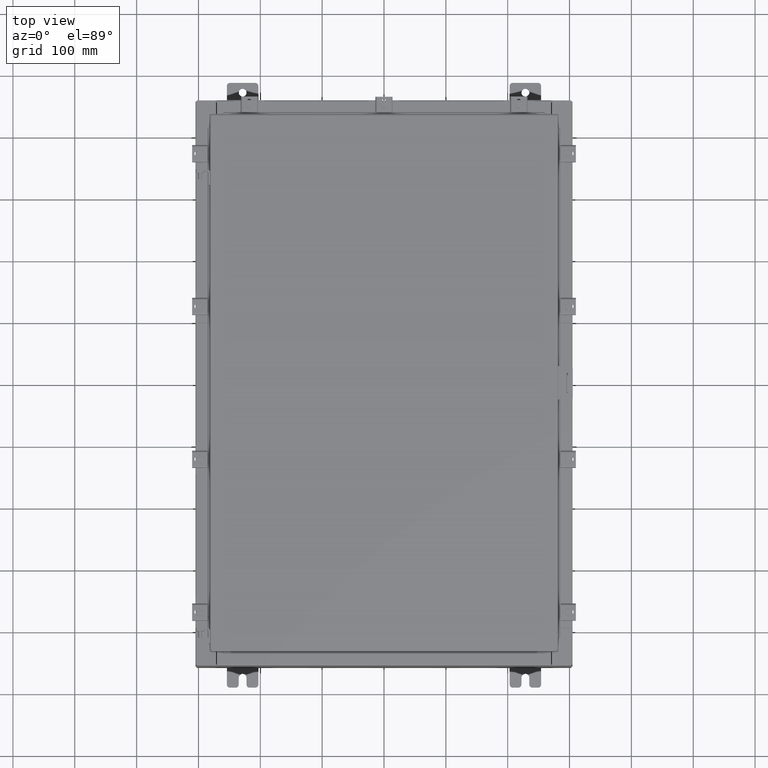
[diagram: clean part render]
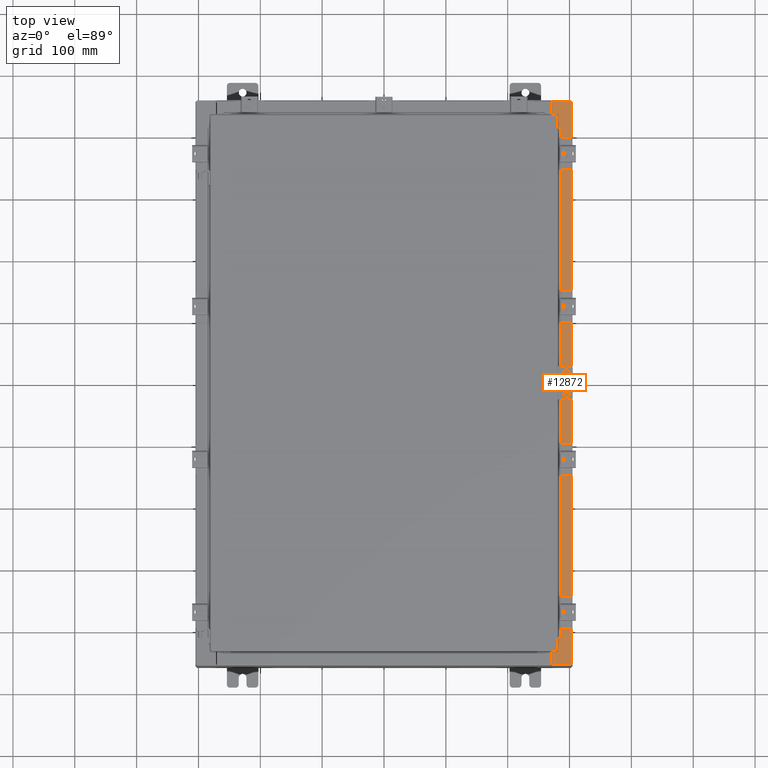
[diagram: same view with one face highlighted and labeled with its STEP entity id]
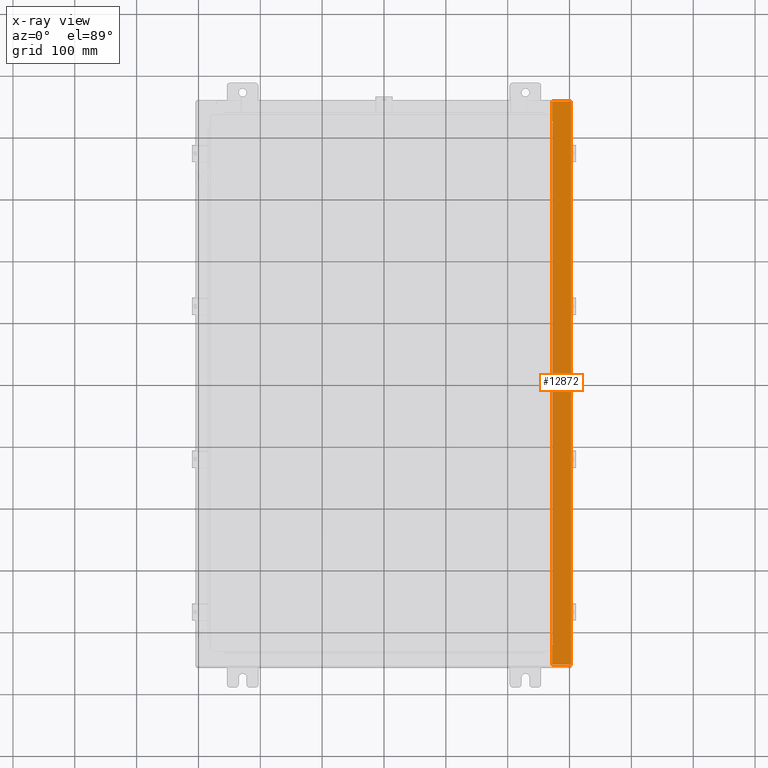
[diagram: x-ray of the same camera — body ghosted, the highlighted face saturated]
A machine part, top view. The second image highlights one B-rep face of the part: STEP entity #12872.
The next image is the same camera in x-ray: the body ghosted, the highlighted face saturated — about 0% of this face is hidden behind the body in this view.
In plain terms, the highlighted planar face has unit normal (-0, 0, -1).
Its self-contained STEP definition (entity closure, byte-faithful):
#133 = DIRECTION ( 'NONE',  ( -0.0000000000000000000, -1.000000000000000000, -0.0000000000000000000 ) ) ;
#177 = VERTEX_POINT ( 'NONE', #4513 ) ;
#478 = CARTESIAN_POINT ( 'NONE',  ( 11.91230000000002900, -17.92530000000000000, 7.925300000000000000 ) ) ;
#501 = LINE ( 'NONE', #18071, #19050 ) ;
#617 = DIRECTION ( 'NONE',  ( -0.0000000000000000000, 1.000000000000000000, -0.0000000000000000000 ) ) ;
#647 = ORIENTED_EDGE ( 'NONE', *, *, #1166, .F. ) ;
#745 = VECTOR ( 'NONE', #4230, 39.37007874015748100 ) ;
#874 = EDGE_CURVE ( 'NONE', #7242, #19210, #10876, .T. ) ;
#920 = ORIENTED_EDGE ( 'NONE', *, *, #2276, .F. ) ;
#1019 = ORIENTED_EDGE ( 'NONE', *, *, #22350, .T. ) ;
#1020 = DIRECTION ( 'NONE',  ( -2.156899250920150100E-031, -1.000000000000000000, 1.346156861557936900E-045 ) ) ;
#1166 = EDGE_CURVE ( 'NONE', #7328, #15864, #9453, .T. ) ;
#1383 = EDGE_CURVE ( 'NONE', #19210, #11576, #15124, .T. ) ;
#1574 = CARTESIAN_POINT ( 'NONE',  ( 11.91230000000002900, 17.92530000000000000, 7.925300000000000000 ) ) ;
#2120 = VECTOR ( 'NONE', #11563, 39.37007874015748100 ) ;
#2276 = EDGE_CURVE ( 'NONE', #11576, #7328, #20979, .T. ) ;
#2464 = VECTOR ( 'NONE', #20028, 39.37007874015748100 ) ;
#2544 = ORIENTED_EDGE ( 'NONE', *, *, #5163, .T. ) ;
#2593 = EDGE_CURVE ( 'NONE', #15864, #13192, #14773, .T. ) ;
#2900 = ORIENTED_EDGE ( 'NONE', *, *, #22109, .T. ) ;
#2977 = CARTESIAN_POINT ( 'NONE',  ( 4.972393517341145600E-014, 17.92529999999999600, 7.925300000000073700 ) ) ;
#3177 = EDGE_CURVE ( 'NONE', #15162, #5106, #4056, .T. ) ;
#3309 = CARTESIAN_POINT ( 'NONE',  ( 1.775970877600283600E-014, -17.92529999999998200, 7.925300000000073700 ) ) ;
#3502 = DIRECTION ( 'NONE',  ( -1.000000000000000000, 0.0000000000000000000, 0.0000000000000000000 ) ) ;
#3794 = CARTESIAN_POINT ( 'NONE',  ( 10.75005000000003000, -16.61242500000000200, 7.925300000000010700 ) ) ;
#4056 = LINE ( 'NONE', #13325, #22647 ) ;
#4192 = CARTESIAN_POINT ( 'NONE',  ( 10.69970000000003000, 16.63110000000000000, 7.925300000000007100 ) ) ;
#4230 = DIRECTION ( 'NONE',  ( -2.156899250920150100E-031, -1.000000000000000000, 1.346156861557936900E-045 ) ) ;
#4513 = CARTESIAN_POINT ( 'NONE',  ( 10.69970000000003000, 17.92530000000000000, 7.925300000000007100 ) ) ;
#4703 = CARTESIAN_POINT ( 'NONE',  ( 4.972393517341145600E-014, 0.0000000000000000000, 7.925300000000073700 ) ) ;
#4997 = CARTESIAN_POINT ( 'NONE',  ( 10.69970000000003000, -16.63110000000000400, 7.925300000000007100 ) ) ;
#5106 = VERTEX_POINT ( 'NONE', #7359 ) ;
#5163 = EDGE_CURVE ( 'NONE', #15162, #15839, #12167, .T. ) ;
#5368 = ORIENTED_EDGE ( 'NONE', *, *, #1383, .F. ) ;
#5570 = DIRECTION ( 'NONE',  ( 1.000000000000000000, 0.0000000000000000000, 0.0000000000000000000 ) ) ;
#5746 = LINE ( 'NONE', #3309, #9392 ) ;
#5892 = ORIENTED_EDGE ( 'NONE', *, *, #11585, .F. ) ;
#6056 = FACE_OUTER_BOUND ( 'NONE', #7735, .T. ) ;
#6096 = ORIENTED_EDGE ( 'NONE', *, *, #14490, .T. ) ;
#6496 = DIRECTION ( 'NONE',  ( -1.000000000000000000, 0.0000000000000000000, 6.241167087353086200E-015 ) ) ;
#6646 = VECTOR ( 'NONE', #3502, 39.37007874015748100 ) ;
#7242 = VERTEX_POINT ( 'NONE', #21766 ) ;
#7328 = VERTEX_POINT ( 'NONE', #9370 ) ;
#7335 = VERTEX_POINT ( 'NONE', #478 ) ;
#7359 = CARTESIAN_POINT ( 'NONE',  ( 10.75005000000003000, -16.63110000000000000, 7.925300000000007100 ) ) ;
#7380 = VECTOR ( 'NONE', #1020, 39.37007874015748100 ) ;
#7467 = CARTESIAN_POINT ( 'NONE',  ( 10.71270000000003000, 16.59375000000000000, 7.925300000000010700 ) ) ;
#7471 = CARTESIAN_POINT ( 'NONE',  ( 10.69970000000003000, -2.307817491507028800E-030, 7.925300000000007100 ) ) ;
#7613 = ORIENTED_EDGE ( 'NONE', *, *, #874, .F. ) ;
#7735 = EDGE_LOOP ( 'NONE', ( #16258, #2544, #2900, #5892, #6096, #1019, #15280, #647, #920, #5368, #7613, #20697 ) ) ;
#7871 = VERTEX_POINT ( 'NONE', #1574 ) ;
#8651 = CARTESIAN_POINT ( 'NONE',  ( 10.75005000000003000, -16.59375000000000000, 7.925300000000010700 ) ) ;
#8823 = VECTOR ( 'NONE', #13864, 39.37007874015748100 ) ;
#9370 = CARTESIAN_POINT ( 'NONE',  ( 10.75005000000003000, 16.59375000000000000, 7.925300000000007100 ) ) ;
#9392 = VECTOR ( 'NONE', #23053, 39.37007874015748100 ) ;
#9453 = CIRCLE ( 'NONE', #17477, 0.01867499999999949400 ) ;
#9732 = VECTOR ( 'NONE', #617, 39.37007874015748100 ) ;
#10876 = LINE ( 'NONE', #8651, #6646 ) ;
#11563 = DIRECTION ( 'NONE',  ( -1.000000000000000000, 0.0000000000000000000, 6.241167087353087800E-015 ) ) ;
#11576 = VERTEX_POINT ( 'NONE', #16241 ) ;
#11585 = EDGE_CURVE ( 'NONE', #7871, #7335, #501, .T. ) ;
#12050 = DIRECTION ( 'NONE',  ( 1.000000000000000000, 0.0000000000000000000, 0.0000000000000000000 ) ) ;
#12167 = LINE ( 'NONE', #7471, #7380 ) ;
#12549 = EDGE_CURVE ( 'NONE', #5106, #7242, #16780, .T. ) ;
#12733 = CARTESIAN_POINT ( 'NONE',  ( 10.75005000000003000, 16.61242500000000200, 7.925300000000010700 ) ) ;
#12864 = DIRECTION ( 'NONE',  ( 6.241167087353086200E-015, 0.0000000000000000000, 1.000000000000000000 ) ) ;
#12872 = ADVANCED_FACE ( 'NONE', ( #6056 ), #22673, .F. ) ;
#13002 = DIRECTION ( 'NONE',  ( 1.000000000000000000, 4.340572780400098900E-014, 4.340572780400098900E-014 ) ) ;
#13172 = CARTESIAN_POINT ( 'NONE',  ( 10.69970000000003000, -2.307817491507028800E-030, 7.925300000000007100 ) ) ;
#13192 = VERTEX_POINT ( 'NONE', #4192 ) ;
#13325 = CARTESIAN_POINT ( 'NONE',  ( 10.69970000000003000, -16.63110000000000400, 7.925300000000008900 ) ) ;
#13685 = AXIS2_PLACEMENT_3D ( 'NONE', #3794, #16408, #5570 ) ;
#13864 = DIRECTION ( 'NONE',  ( -1.000000000000000000, 4.340572780400098900E-014, -4.340572780400098900E-014 ) ) ;
#14426 = CARTESIAN_POINT ( 'NONE',  ( 10.75005000000003000, 16.63110000000000000, 7.925300000000010700 ) ) ;
#14490 = EDGE_CURVE ( 'NONE', #7871, #177, #15870, .T. ) ;
#14773 = LINE ( 'NONE', #14426, #8823 ) ;
#15124 = LINE ( 'NONE', #15948, #9732 ) ;
#15162 = VERTEX_POINT ( 'NONE', #4997 ) ;
#15280 = ORIENTED_EDGE ( 'NONE', *, *, #2593, .F. ) ;
#15663 = AXIS2_PLACEMENT_3D ( 'NONE', #4703, #17349, #6496 ) ;
#15839 = VERTEX_POINT ( 'NONE', #16117 ) ;
#15864 = VERTEX_POINT ( 'NONE', #17943 ) ;
#15870 = LINE ( 'NONE', #2977, #2120 ) ;
#15948 = CARTESIAN_POINT ( 'NONE',  ( 10.71270000000003000, -16.59375000000000000, 7.925300000000010700 ) ) ;
#16117 = CARTESIAN_POINT ( 'NONE',  ( 10.69970000000003000, -17.92530000000000000, 7.925300000000007100 ) ) ;
#16241 = CARTESIAN_POINT ( 'NONE',  ( 10.71270000000003000, 16.59375000000000000, 7.925300000000010700 ) ) ;
#16258 = ORIENTED_EDGE ( 'NONE', *, *, #3177, .F. ) ;
#16408 = DIRECTION ( 'NONE',  ( 6.241167087353086200E-015, 0.0000000000000000000, 1.000000000000000000 ) ) ;
#16780 = CIRCLE ( 'NONE', #13685, 0.01867499999999949400 ) ;
#17135 = CARTESIAN_POINT ( 'NONE',  ( 10.71270000000003000, -16.59375000000000000, 7.925300000000010700 ) ) ;
#17349 = DIRECTION ( 'NONE',  ( -6.241167087353086200E-015, 0.0000000000000000000, -1.000000000000000000 ) ) ;
#17477 = AXIS2_PLACEMENT_3D ( 'NONE', #12733, #12864, #12050 ) ;
#17943 = CARTESIAN_POINT ( 'NONE',  ( 10.75005000000003000, 16.63110000000000000, 7.925300000000007100 ) ) ;
#18071 = CARTESIAN_POINT ( 'NONE',  ( 11.91230000000002900, -17.92530000000000000, 7.925300000000000000 ) ) ;
#19050 = VECTOR ( 'NONE', #133, 39.37007874015748100 ) ;
#19210 = VERTEX_POINT ( 'NONE', #17135 ) ;
#19869 = LINE ( 'NONE', #13172, #745 ) ;
#20028 = DIRECTION ( 'NONE',  ( 1.000000000000000000, 0.0000000000000000000, 0.0000000000000000000 ) ) ;
#20697 = ORIENTED_EDGE ( 'NONE', *, *, #12549, .F. ) ;
#20979 = LINE ( 'NONE', #7467, #2464 ) ;
#21766 = CARTESIAN_POINT ( 'NONE',  ( 10.75005000000003000, -16.59375000000000000, 7.925300000000007100 ) ) ;
#22109 = EDGE_CURVE ( 'NONE', #15839, #7335, #5746, .T. ) ;
#22350 = EDGE_CURVE ( 'NONE', #177, #13192, #19869, .T. ) ;
#22647 = VECTOR ( 'NONE', #13002, 39.37007874015748100 ) ;
#22673 = PLANE ( 'NONE',  #15663 ) ;
#23053 = DIRECTION ( 'NONE',  ( 1.000000000000000000, -1.783190596386596200E-015, -6.241167087353087800E-015 ) ) ;